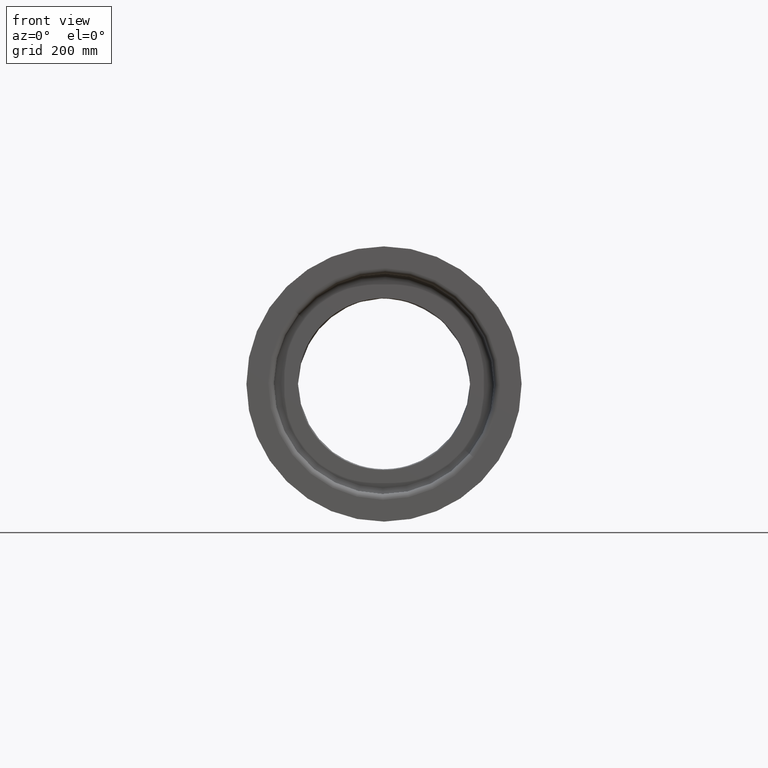
[diagram: clean part render]
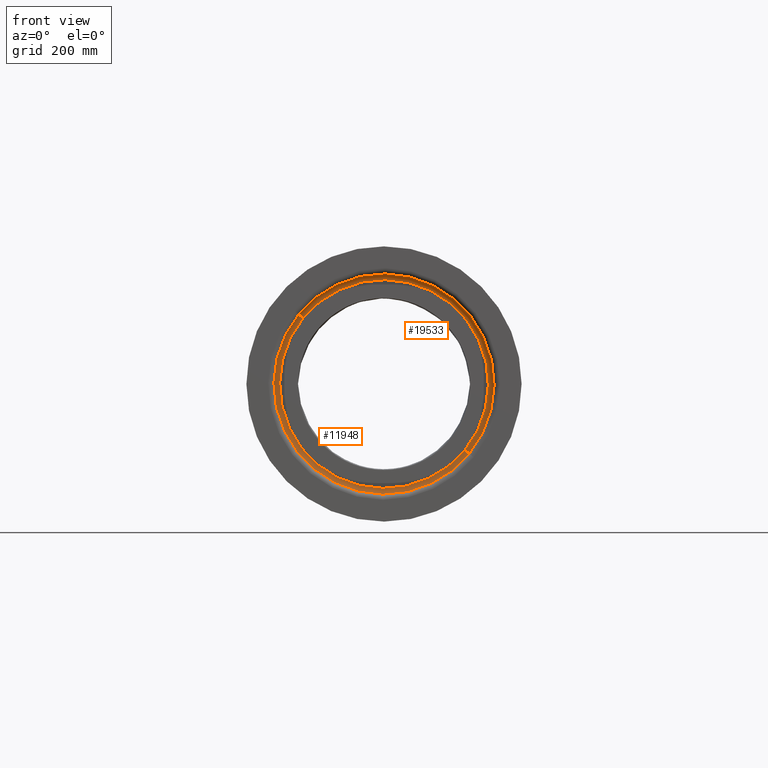
[diagram: same view with one multi-face feature highlighted, each face labeled with its STEP entity id]
A machine part, front view. The highlighted faces form ONE feature: a constant-radius fillet chain: 2 tangent blend faces with common blend radius 10 mm. The faces share edges in the B-rep.
Their STEP definitions:
[1] entity #19533 (Torus):
#356 = VERTEX_POINT ( 'NONE', #15733 ) ;
#519 = FACE_OUTER_BOUND ( 'NONE', #13568, .T. ) ;
#1083 = ORIENTED_EDGE ( 'NONE', *, *, #6270, .T. ) ;
#1448 = VERTEX_POINT ( 'NONE', #7113 ) ;
#2031 = ORIENTED_EDGE ( 'NONE', *, *, #19104, .F. ) ;
#2121 = CIRCLE ( 'NONE', #17569, 10.00000000000001421 ) ;
#3253 = DIRECTION ( 'NONE',  ( 0.6324169021909432642, -0.7746282087706404251, -1.384488183606090642E-16 ) ) ;
#3752 = CARTESIAN_POINT ( 'NONE',  ( 0.0000000000000000000, 5.881216177614782982E-31, 5.551115123125782702E-14 ) ) ;
#4608 = DIRECTION ( 'NONE',  ( -0.7746282087706407582, -0.6324169021909428201, 0.0000000000000000000 ) ) ;
#4625 = CARTESIAN_POINT ( 'NONE',  ( 0.0000000000000000000, 2.472930636389335927E-15, -9.999999999999953815 ) ) ;
#5017 = CARTESIAN_POINT ( 'NONE',  ( 140.9823339962565285, 115.0998761987516588, -9.999999999999987566 ) ) ;
#5305 = VERTEX_POINT ( 'NONE', #10626 ) ;
#5401 = DIRECTION ( 'NONE',  ( 0.7746282087706404251, 0.6324169021909432642, -1.859543213190016932E-16 ) ) ;
#6270 = EDGE_CURVE ( 'NONE', #5305, #22719, #18664, .T. ) ;
#7113 = CARTESIAN_POINT ( 'NONE',  ( -148.7286160839629474, -121.4240452206610712, -9.999999999999916511 ) ) ;
#7880 = TOROIDAL_SURFACE ( 'NONE', #15050, 181.9999999999999716, 10.00000000000000533 ) ;
#8599 = CIRCLE ( 'NONE', #23356, 10.00000000000001421 ) ;
#8817 = CARTESIAN_POINT ( 'NONE',  ( 0.0000000000000000000, -1.035429566449207789E-16, -9.999999999999953815 ) ) ;
#9068 = EDGE_CURVE ( 'NONE', #1448, #356, #22829, .T. ) ;
#9891 = CARTESIAN_POINT ( 'NONE',  ( -140.9823339962565569, -115.0998761987516303, -9.999999999999918288 ) ) ;
#9966 = AXIS2_PLACEMENT_3D ( 'NONE', #3752, #20036, #5401 ) ;
#10351 = AXIS2_PLACEMENT_3D ( 'NONE', #8817, #23124, #14137 ) ;
#10626 = CARTESIAN_POINT ( 'NONE',  ( -140.9823339962565569, -115.0998761987516303, 8.804550575507825494E-14 ) ) ;
#12918 = EDGE_CURVE ( 'NONE', #1448, #5305, #2121, .T. ) ;
#13568 = EDGE_LOOP ( 'NONE', ( #18847, #22492, #1083, #2031 ) ) ;
#14137 = DIRECTION ( 'NONE',  ( 0.7746282087706404251, 0.6324169021909433752, -1.897353801849633006E-16 ) ) ;
#14440 = CARTESIAN_POINT ( 'NONE',  ( 140.9823339962565285, 115.0998761987516588, 1.950734975548379754E-14 ) ) ;
#15050 = AXIS2_PLACEMENT_3D ( 'NONE', #4625, #15253, #19020 ) ;
#15253 = DIRECTION ( 'NONE',  ( 2.316028356561116276E-16, 1.035429566449217773E-17, 1.000000000000000000 ) ) ;
#15349 = DIRECTION ( 'NONE',  ( -0.6324169021909431532, 0.7746282087706405362, 1.384488183606090395E-16 ) ) ;
#15733 = CARTESIAN_POINT ( 'NONE',  ( 148.7286160839629474, 121.4240452206610996, -9.999999999999989342 ) ) ;
#17569 = AXIS2_PLACEMENT_3D ( 'NONE', #9891, #15349, #4608 ) ;
#17649 = DIRECTION ( 'NONE',  ( 0.7746282087706407582, 0.6324169021909428201, 0.0000000000000000000 ) ) ;
#18664 = CIRCLE ( 'NONE', #9966, 181.9999999999999716 ) ;
#18847 = ORIENTED_EDGE ( 'NONE', *, *, #9068, .F. ) ;
#19020 = DIRECTION ( 'NONE',  ( 0.7746282087706405362, 0.6324169021909432642, -1.859543213190020630E-16 ) ) ;
#19104 = EDGE_CURVE ( 'NONE', #356, #22719, #8599, .T. ) ;
#19533 = ADVANCED_FACE ( 'NONE', ( #519 ), #7880, .F. ) ;
#20036 = DIRECTION ( 'NONE',  ( 2.316028356561116276E-16, 1.035429566449217773E-17, 1.000000000000000000 ) ) ;
#22492 = ORIENTED_EDGE ( 'NONE', *, *, #12918, .T. ) ;
#22719 = VERTEX_POINT ( 'NONE', #14440 ) ;
#22829 = CIRCLE ( 'NONE', #10351, 191.9999999999999716 ) ;
#23124 = DIRECTION ( 'NONE',  ( 2.316028356561116276E-16, 1.035429566449217773E-17, 1.000000000000000000 ) ) ;
#23356 = AXIS2_PLACEMENT_3D ( 'NONE', #5017, #3253, #17649 ) ;
[2] entity #11948 (Torus):
#250 = DIRECTION ( 'NONE',  ( 2.316028356561116276E-16, 1.035429566449217773E-17, 1.000000000000000000 ) ) ;
#356 = VERTEX_POINT ( 'NONE', #15733 ) ;
#1448 = VERTEX_POINT ( 'NONE', #7113 ) ;
#2006 = FACE_OUTER_BOUND ( 'NONE', #20738, .T. ) ;
#2121 = CIRCLE ( 'NONE', #17569, 10.00000000000001421 ) ;
#2287 = DIRECTION ( 'NONE',  ( 0.7746282087706404251, 0.6324169021909432642, -1.859543213190016932E-16 ) ) ;
#2947 = DIRECTION ( 'NONE',  ( 2.316028356561116276E-16, 1.035429566449217773E-17, 1.000000000000000000 ) ) ;
#3253 = DIRECTION ( 'NONE',  ( 0.6324169021909432642, -0.7746282087706404251, -1.384488183606090642E-16 ) ) ;
#4608 = DIRECTION ( 'NONE',  ( -0.7746282087706407582, -0.6324169021909428201, 0.0000000000000000000 ) ) ;
#4705 = CIRCLE ( 'NONE', #16776, 181.9999999999999716 ) ;
#5017 = CARTESIAN_POINT ( 'NONE',  ( 140.9823339962565285, 115.0998761987516588, -9.999999999999987566 ) ) ;
#5305 = VERTEX_POINT ( 'NONE', #10626 ) ;
#6800 = ORIENTED_EDGE ( 'NONE', *, *, #19104, .T. ) ;
#7003 = TOROIDAL_SURFACE ( 'NONE', #10753, 181.9999999999999716, 10.00000000000000533 ) ;
#7113 = CARTESIAN_POINT ( 'NONE',  ( -148.7286160839629474, -121.4240452206610712, -9.999999999999916511 ) ) ;
#7406 = EDGE_CURVE ( 'NONE', #22719, #5305, #4705, .T. ) ;
#7427 = DIRECTION ( 'NONE',  ( 0.7746282087706405362, 0.6324169021909432642, -1.859543213190020630E-16 ) ) ;
#8599 = CIRCLE ( 'NONE', #23356, 10.00000000000001421 ) ;
#8736 = ORIENTED_EDGE ( 'NONE', *, *, #7406, .T. ) ;
#9637 = CIRCLE ( 'NONE', #22491, 191.9999999999999716 ) ;
#9848 = ORIENTED_EDGE ( 'NONE', *, *, #12918, .F. ) ;
#9891 = CARTESIAN_POINT ( 'NONE',  ( -140.9823339962565569, -115.0998761987516303, -9.999999999999918288 ) ) ;
#10626 = CARTESIAN_POINT ( 'NONE',  ( -140.9823339962565569, -115.0998761987516303, 8.804550575507825494E-14 ) ) ;
#10753 = AXIS2_PLACEMENT_3D ( 'NONE', #16407, #250, #7427 ) ;
#11603 = ORIENTED_EDGE ( 'NONE', *, *, #12464, .F. ) ;
#11948 = ADVANCED_FACE ( 'NONE', ( #2006 ), #7003, .F. ) ;
#12464 = EDGE_CURVE ( 'NONE', #356, #1448, #9637, .T. ) ;
#12918 = EDGE_CURVE ( 'NONE', #1448, #5305, #2121, .T. ) ;
#13569 = CARTESIAN_POINT ( 'NONE',  ( 0.0000000000000000000, -1.035429566449207789E-16, -9.999999999999953815 ) ) ;
#14440 = CARTESIAN_POINT ( 'NONE',  ( 140.9823339962565285, 115.0998761987516588, 1.950734975548379754E-14 ) ) ;
#14684 = DIRECTION ( 'NONE',  ( 2.316028356561116276E-16, 1.035429566449217773E-17, 1.000000000000000000 ) ) ;
#15349 = DIRECTION ( 'NONE',  ( -0.6324169021909431532, 0.7746282087706405362, 1.384488183606090395E-16 ) ) ;
#15733 = CARTESIAN_POINT ( 'NONE',  ( 148.7286160839629474, 121.4240452206610996, -9.999999999999989342 ) ) ;
#16407 = CARTESIAN_POINT ( 'NONE',  ( 0.0000000000000000000, 2.472930636389335927E-15, -9.999999999999953815 ) ) ;
#16776 = AXIS2_PLACEMENT_3D ( 'NONE', #18229, #14684, #2287 ) ;
#17569 = AXIS2_PLACEMENT_3D ( 'NONE', #9891, #15349, #4608 ) ;
#17649 = DIRECTION ( 'NONE',  ( 0.7746282087706407582, 0.6324169021909428201, 0.0000000000000000000 ) ) ;
#18229 = CARTESIAN_POINT ( 'NONE',  ( 0.0000000000000000000, 5.881216177614782982E-31, 5.551115123125782702E-14 ) ) ;
#19104 = EDGE_CURVE ( 'NONE', #356, #22719, #8599, .T. ) ;
#20738 = EDGE_LOOP ( 'NONE', ( #9848, #11603, #6800, #8736 ) ) ;
#20790 = DIRECTION ( 'NONE',  ( 0.7746282087706404251, 0.6324169021909433752, -1.897353801849633006E-16 ) ) ;
#22491 = AXIS2_PLACEMENT_3D ( 'NONE', #13569, #2947, #20790 ) ;
#22719 = VERTEX_POINT ( 'NONE', #14440 ) ;
#23356 = AXIS2_PLACEMENT_3D ( 'NONE', #5017, #3253, #17649 ) ;